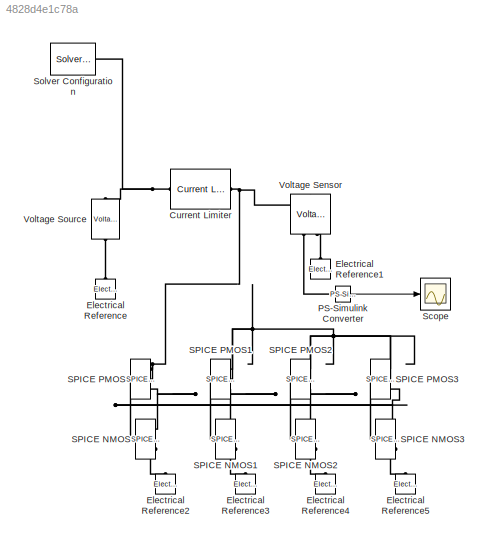
MODEL slx_4828d4e1c78a
KIND model
CONFIG AbsTol = auto
CONFIG EnableMultiTasking = off
CONFIG FixedStep = auto
CONFIG MaxStep = auto
CONFIG MinStep = auto
CONFIG RelTol = 1e-3
CONFIG SampleTimeConstraint = Unconstrained
CONFIG SolverName = VariableStepAuto
CONFIG StartTime = 0.0
CONFIG StopTime = 10.0
BLOCK [Reference] Current Limiter  REF=ee_lib/Semiconductors &
Converters/Current Limiter
  Ports = [0, 0, 0, 0, 0, 1, 1]
  SourceBlock = ee_lib/Semiconductors &\nConverters/Current Limiter
  SourceProductBaseCode = PS
  SourceType = Current Limiter
BLOCK [Reference] Electrical Reference  REF=fl_lib/Electrical/Electrical Elements/Electrical Reference
  NameLocation = right
  Ports = [0, 0, 0, 0, 0, 1]
  SourceBlock = fl_lib/Electrical/Electrical Elements/Electrical Reference
  SourceProductBaseCode = SS
  SourceType = Electrical Reference
BLOCK [Reference] Electrical Reference1  REF=fl_lib/Electrical/Electrical Elements/Electrical Reference
  NameLocation = right
  Ports = [0, 0, 0, 0, 0, 1]
  SourceBlock = fl_lib/Electrical/Electrical Elements/Electrical Reference
  SourceProductBaseCode = SS
  SourceType = Electrical Reference
BLOCK [Reference] Electrical Reference2  REF=fl_lib/Electrical/Electrical Elements/Electrical Reference
  NameLocation = right
  Ports = [0, 0, 0, 0, 0, 1]
  SourceBlock = fl_lib/Electrical/Electrical Elements/Electrical Reference
  SourceProductBaseCode = SS
  SourceType = Electrical Reference
BLOCK [Reference] Electrical Reference3  REF=fl_lib/Electrical/Electrical Elements/Electrical Reference
  NameLocation = right
  Ports = [0, 0, 0, 0, 0, 1]
  SourceBlock = fl_lib/Electrical/Electrical Elements/Electrical Reference
  SourceProductBaseCode = SS
  SourceType = Electrical Reference
BLOCK [Reference] Electrical Reference4  REF=fl_lib/Electrical/Electrical Elements/Electrical Reference
  NameLocation = right
  Ports = [0, 0, 0, 0, 0, 1]
  SourceBlock = fl_lib/Electrical/Electrical Elements/Electrical Reference
  SourceProductBaseCode = SS
  SourceType = Electrical Reference
BLOCK [Reference] Electrical Reference5  REF=fl_lib/Electrical/Electrical Elements/Electrical Reference
  NameLocation = right
  Ports = [0, 0, 0, 0, 0, 1]
  SourceBlock = fl_lib/Electrical/Electrical Elements/Electrical Reference
  SourceProductBaseCode = SS
  SourceType = Electrical Reference
BLOCK [Reference] PS-Simulink Converter  REF=nesl_utility/PS-Simulink
Converter
  Ports = [0, 1, 0, 0, 0, 1]
  SourceBlock = nesl_utility/PS-Simulink\nConverter
  SourceProductBaseCode = PW,SS
  SourceType = PS-Simulink\nConverter
BLOCK [Reference] SPICE NMOS  REF=ee_lib/Additional
Components/SPICE Semiconductors/SPICE NMOS
  Ports = [0, 0, 0, 0, 0, 1, 3]
  SourceBlock = ee_lib/Additional\nComponents/SPICE Semiconductors/SPICE NMOS
  SourceProductBaseCode = PS
  SourceType = SPICE NMOS
BLOCK [Reference] SPICE NMOS1  REF=ee_lib/Additional
Components/SPICE Semiconductors/SPICE NMOS
  Ports = [0, 0, 0, 0, 0, 1, 3]
  SourceBlock = ee_lib/Additional\nComponents/SPICE Semiconductors/SPICE NMOS
  SourceProductBaseCode = PS
  SourceType = SPICE NMOS
BLOCK [Reference] SPICE NMOS2  REF=ee_lib/Additional
Components/SPICE Semiconductors/SPICE NMOS
  Ports = [0, 0, 0, 0, 0, 1, 3]
  SourceBlock = ee_lib/Additional\nComponents/SPICE Semiconductors/SPICE NMOS
  SourceProductBaseCode = PS
  SourceType = SPICE NMOS
BLOCK [Reference] SPICE NMOS3  REF=ee_lib/Additional
Components/SPICE Semiconductors/SPICE NMOS
  Ports = [0, 0, 0, 0, 0, 1, 3]
  SourceBlock = ee_lib/Additional\nComponents/SPICE Semiconductors/SPICE NMOS
  SourceProductBaseCode = PS
  SourceType = SPICE NMOS
BLOCK [Reference] SPICE PMOS  REF=ee_lib/Additional
Components/SPICE Semiconductors/SPICE PMOS
  Ports = [0, 0, 0, 0, 0, 1, 3]
  SourceBlock = ee_lib/Additional\nComponents/SPICE Semiconductors/SPICE PMOS
  SourceProductBaseCode = PS
  SourceType = SPICE PMOS
BLOCK [Reference] SPICE PMOS1  REF=ee_lib/Additional
Components/SPICE Semiconductors/SPICE PMOS
  Ports = [0, 0, 0, 0, 0, 1, 3]
  SourceBlock = ee_lib/Additional\nComponents/SPICE Semiconductors/SPICE PMOS
  SourceProductBaseCode = PS
  SourceType = SPICE PMOS
BLOCK [Reference] SPICE PMOS2  REF=ee_lib/Additional
Components/SPICE Semiconductors/SPICE PMOS
  Ports = [0, 0, 0, 0, 0, 1, 3]
  SourceBlock = ee_lib/Additional\nComponents/SPICE Semiconductors/SPICE PMOS
  SourceProductBaseCode = PS
  SourceType = SPICE PMOS
BLOCK [Reference] SPICE PMOS3  REF=ee_lib/Additional
Components/SPICE Semiconductors/SPICE PMOS
  Ports = [0, 0, 0, 0, 0, 1, 3]
  SourceBlock = ee_lib/Additional\nComponents/SPICE Semiconductors/SPICE PMOS
  SourceProductBaseCode = PS
  SourceType = SPICE PMOS
BLOCK [Scope] Scope
  Floating = off
  NumInputPorts = 1
  Ports = [1]
  ScopeSpecificationString = Simulink.scopes.TimeScopeBlockCfg('CurrentConfiguration', extmgr.ConfigurationSet(extmgr.Configuration('Core','General UI',true),extmgr.Configuration('Core','Source UI',true),extmgr.Configuration('Sources','WiredSimulink',true),extmgr.Configuration('Visuals','Time Domain',true,'SerializedDisplays',{struct('MinYLimReal','0.0002273045926113598','MaxYLimReal','0.0002273045926113635','YLabelReal','','...<+1451ch>
BLOCK [Reference] Solver Configuration  REF=nesl_utility/Solver
Configuration
  Ports = [0, 0, 0, 0, 0, 0, 1]
  SourceBlock = nesl_utility/Solver\nConfiguration
  SourceProductBaseCode = PW,SS
  SourceType = Solver\nConfiguration
BLOCK [Reference] Voltage Sensor  REF=fl_lib/Electrical/Electrical Sensors/Voltage Sensor
  NameLocation = right
  Ports = [0, 0, 0, 0, 0, 1, 2]
  SourceBlock = fl_lib/Electrical/Electrical Sensors/Voltage Sensor
  SourceProductBaseCode = SS
  SourceType = Voltage Sensor
BLOCK [Reference] Voltage Source  REF=ee_lib/Sources/Voltage Source
  NameLocation = right
  Ports = [0, 0, 0, 0, 0, 1, 1]
  SourceBlock = ee_lib/Sources/Voltage Source
  SourceProductBaseCode = PS
  SourceType = Voltage Source
LINE PS-Simulink Converter:1 -> Scope:1
PNET net1: Current Limiter:LConn1 -- Solver Configuration:RConn1 -- Voltage Source:LConn1
PNET net2: Current Limiter:RConn1 -- SPICE PMOS1:RConn1 -- SPICE PMOS1:RConn2 -- SPICE PMOS2:RConn1 -- SPICE PMOS2:RConn2 -- SPICE PMOS3:RConn1 -- SPICE PMOS3:RConn2 -- SPICE PMOS:RConn1 -- SPICE PMOS:RConn2 -- Voltage Sensor:LConn1
PLINE Electrical Reference1:LConn1 -- Voltage Sensor:RConn2
PNET net3: Electrical Reference2:LConn1 -- SPICE NMOS:RConn2 -- SPICE NMOS:RConn3
PNET net4: Electrical Reference3:LConn1 -- SPICE NMOS1:RConn2 -- SPICE NMOS1:RConn3
PNET net5: Electrical Reference4:LConn1 -- SPICE NMOS2:RConn2 -- SPICE NMOS2:RConn3
PNET net6: Electrical Reference5:LConn1 -- SPICE NMOS3:RConn2 -- SPICE NMOS3:RConn3
PLINE Electrical Reference:LConn1 -- Voltage Source:RConn1
PLINE PS-Simulink Converter:LConn1 -- Voltage Sensor:RConn1
PNET net7: SPICE NMOS1:LConn1 -- SPICE NMOS:RConn1 -- SPICE PMOS1:LConn1 -- SPICE PMOS:RConn3
PNET net8: SPICE NMOS1:RConn1 -- SPICE NMOS2:LConn1 -- SPICE PMOS1:RConn3 -- SPICE PMOS2:LConn1
PNET net9: SPICE NMOS2:RConn1 -- SPICE NMOS3:LConn1 -- SPICE PMOS2:RConn3 -- SPICE PMOS3:LConn1
PNET net10: SPICE NMOS3:RConn1 -- SPICE NMOS:LConn1 -- SPICE PMOS3:RConn3 -- SPICE PMOS:LConn1
note: PNET lines group multi-terminal physical nets as a canonical sorted terminal list (undirected conserving connections); 2-terminal nets keep the pairwise PLINE form
